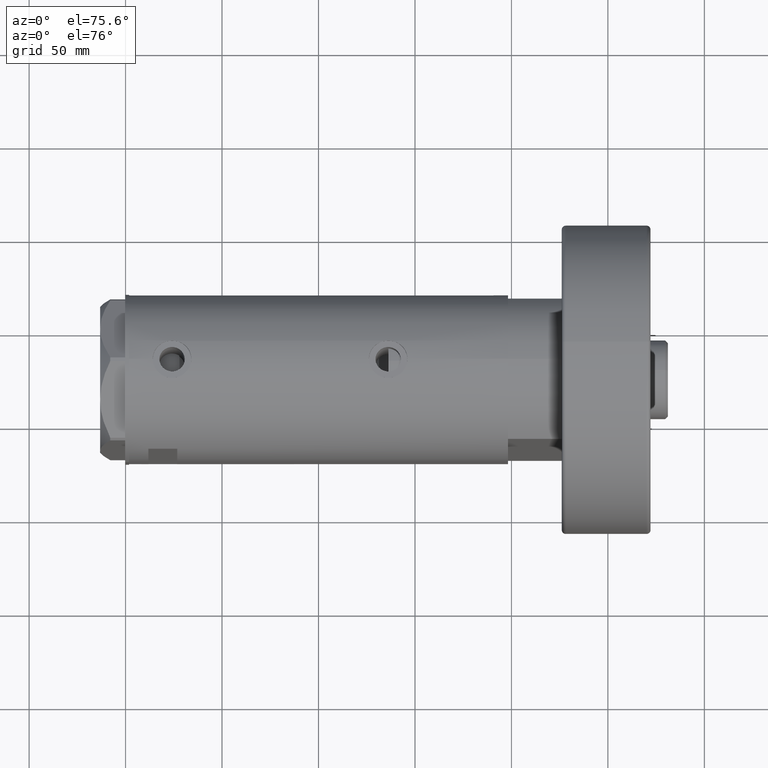
[diagram: clean part render]
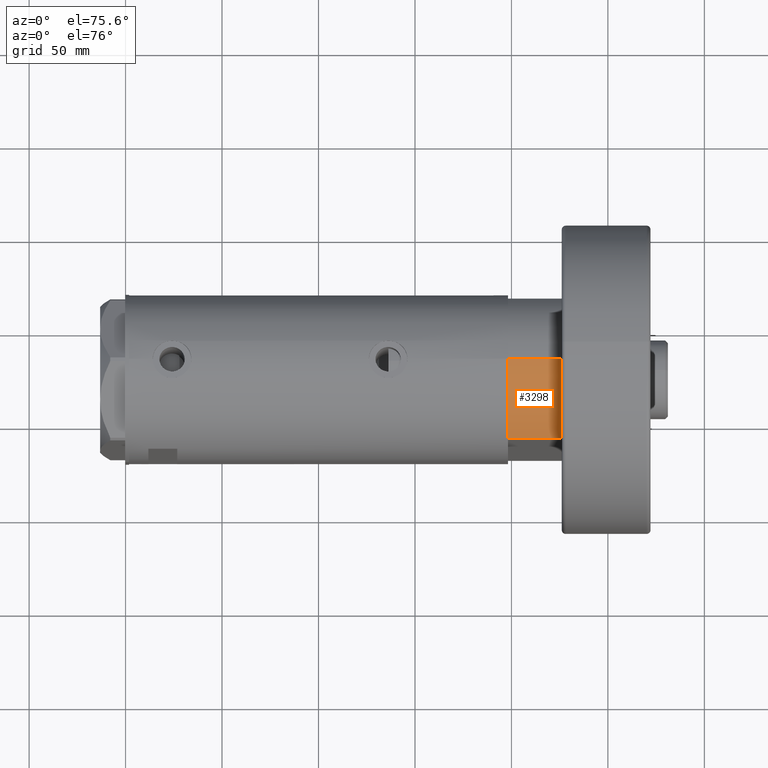
[diagram: same view with one face highlighted and labeled with its STEP entity id]
A machine part, auxiliary view. The second image highlights one B-rep face of the part: STEP entity #3298.
In plain terms, the highlighted cylindrical surface (partial cylindrical patch) has radius 44 mm, axis along (-1, -0, 0).
Its self-contained STEP definition (entity closure, byte-faithful):
#60 = ORIENTED_EDGE ( 'NONE', *, *, #2338, .F. ) ;
#237 = CARTESIAN_POINT ( 'NONE',  ( -44.00000000000000000, 0.000000000000000000, 27.89999999999999858 ) ) ;
#275 = EDGE_CURVE ( 'NONE', #4202, #2007, #6278, .T. ) ;
#762 = FACE_OUTER_BOUND ( 'NONE', #6319, .T. ) ;
#1038 = AXIS2_PLACEMENT_3D ( 'NONE', #2458, #1642, #2656 ) ;
#1159 = AXIS2_PLACEMENT_3D ( 'NONE', #5301, #3294, #2873 ) ;
#1642 = DIRECTION ( 'NONE',  ( 0.000000000000000000, 0.000000000000000000, 1.000000000000000000 ) ) ;
#1886 = CIRCLE ( 'NONE', #1159, 44.00000000000000000 ) ;
#2007 = VERTEX_POINT ( 'NONE', #2203 ) ;
#2203 = CARTESIAN_POINT ( 'NONE',  ( -44.00000000000000000, 0.000000000000000000, 0.000000000000000000 ) ) ;
#2338 = EDGE_CURVE ( 'NONE', #4202, #4882, #4934, .T. ) ;
#2353 = ORIENTED_EDGE ( 'NONE', *, *, #275, .T. ) ;
#2458 = CARTESIAN_POINT ( 'NONE',  ( 0.000000000000000000, 0.000000000000000000, 27.89999999999999858 ) ) ;
#2486 = VECTOR ( 'NONE', #5902, 1000.000000000000000 ) ;
#2563 = ORIENTED_EDGE ( 'NONE', *, *, #3677, .T. ) ;
#2656 = DIRECTION ( 'NONE',  ( 1.000000000000000000, 0.000000000000000000, 0.000000000000000000 ) ) ;
#2744 = DIRECTION ( 'NONE',  ( -0.000000000000000000, -0.000000000000000000, -1.000000000000000000 ) ) ;
#2770 = CARTESIAN_POINT ( 'NONE',  ( 0.000000000000000000, 0.000000000000000000, 27.89999999999999858 ) ) ;
#2851 = DIRECTION ( 'NONE',  ( -0.000000000000000000, -0.000000000000000000, -1.000000000000000000 ) ) ;
#2873 = DIRECTION ( 'NONE',  ( 1.000000000000000000, 0.000000000000000000, 0.000000000000000000 ) ) ;
#2916 = CARTESIAN_POINT ( 'NONE',  ( -44.00000000000000000, 0.000000000000000000, 27.89999999999999858 ) ) ;
#3290 = DIRECTION ( 'NONE',  ( -1.000000000000000000, 0.000000000000000000, 0.000000000000000000 ) ) ;
#3294 = DIRECTION ( 'NONE',  ( 0.000000000000000000, 0.000000000000000000, 1.000000000000000000 ) ) ;
#3298 = ADVANCED_FACE ( 'NONE', ( #762 ), #5654, .T. ) ;
#3677 = EDGE_CURVE ( 'NONE', #6100, #4882, #5414, .T. ) ;
#3948 = CARTESIAN_POINT ( 'NONE',  ( -23.01629857296780557, -37.50000000000000000, 0.000000000000000000 ) ) ;
#4010 = AXIS2_PLACEMENT_3D ( 'NONE', #2770, #2744, #3290 ) ;
#4199 = VECTOR ( 'NONE', #2851, 1000.000000000000000 ) ;
#4202 = VERTEX_POINT ( 'NONE', #237 ) ;
#4882 = VERTEX_POINT ( 'NONE', #6199 ) ;
#4934 = CIRCLE ( 'NONE', #1038, 44.00000000000000000 ) ;
#5288 = ORIENTED_EDGE ( 'NONE', *, *, #5484, .T. ) ;
#5301 = CARTESIAN_POINT ( 'NONE',  ( 0.000000000000000000, 0.000000000000000000, 0.000000000000000000 ) ) ;
#5414 = LINE ( 'NONE', #3948, #2486 ) ;
#5484 = EDGE_CURVE ( 'NONE', #2007, #6100, #1886, .T. ) ;
#5654 = CYLINDRICAL_SURFACE ( 'NONE', #4010, 44.00000000000000000 ) ;
#5902 = DIRECTION ( 'NONE',  ( -0.000000000000000000, -0.000000000000000000, 1.000000000000000000 ) ) ;
#5933 = CARTESIAN_POINT ( 'NONE',  ( -23.01629857296780557, -37.50000000000000000, 0.000000000000000000 ) ) ;
#6100 = VERTEX_POINT ( 'NONE', #5933 ) ;
#6199 = CARTESIAN_POINT ( 'NONE',  ( -23.01629857296780557, -37.50000000000000000, 27.89999999999999858 ) ) ;
#6278 = LINE ( 'NONE', #2916, #4199 ) ;
#6319 = EDGE_LOOP ( 'NONE', ( #60, #2353, #5288, #2563 ) ) ;